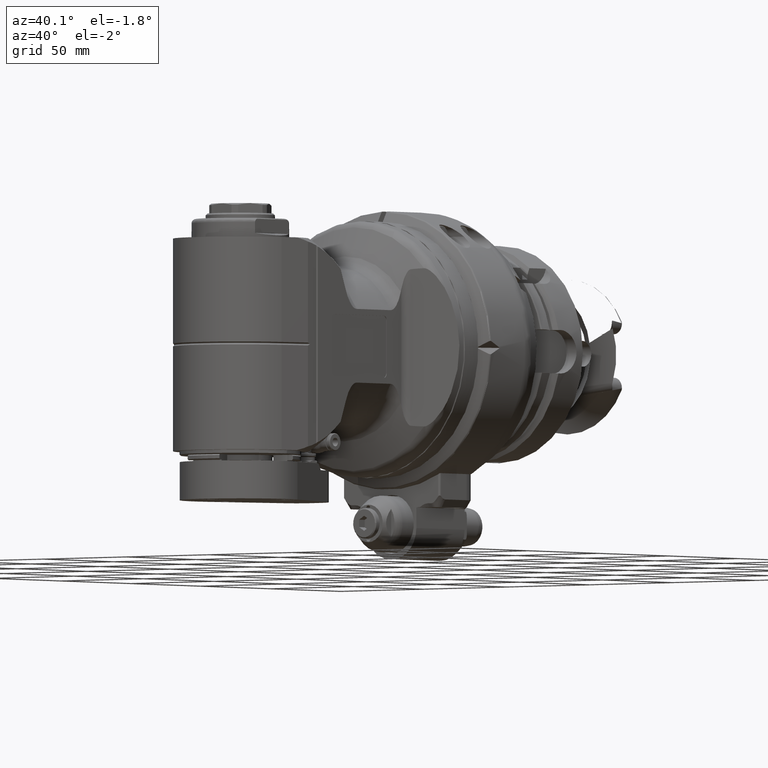
[diagram: clean part render]
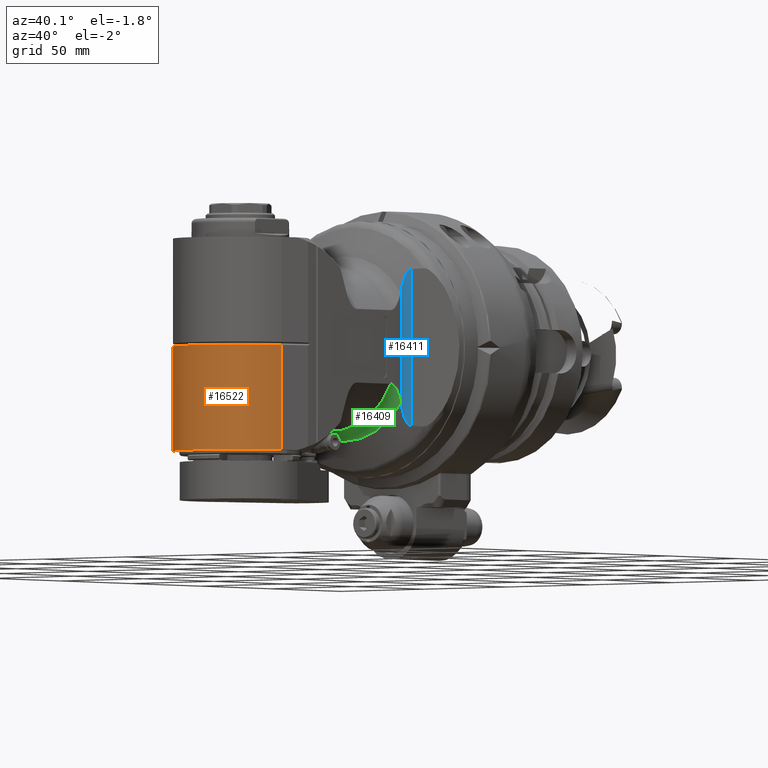
[diagram: same view with three faces highlighted in distinct colors, each labeled with its STEP entity id]
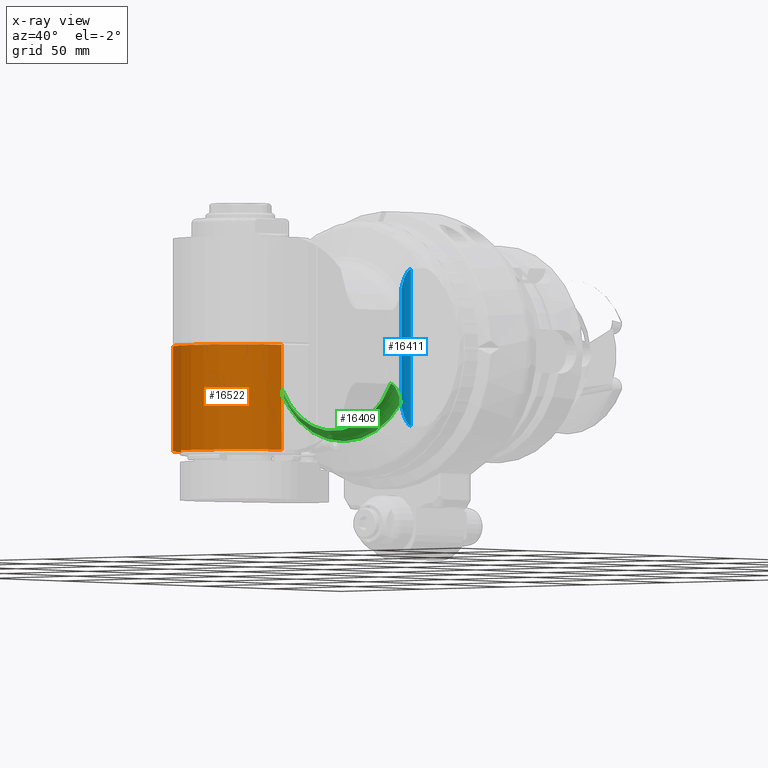
[diagram: x-ray of the same camera — body ghosted, the three highlighted faces saturated]
A machine part, auxiliary view with three faces highlighted in distinct colors.
The next image is the same camera in x-ray (body ghosted, the three faces saturated) — at least one of them is partly hidden behind the body in this view.
Their STEP definitions:

[orange] entity #16522 — the highlighted cylindrical surface (partial cylindrical patch) has radius 31 mm, axis along (-0, 0, -1).
#1303=LINE('',#31589,#2481);
#1306=LINE('',#31649,#2484);
#2481=VECTOR('',#21281,48.33431457505);
#2484=VECTOR('',#21292,48.33431457505);
#3252=CYLINDRICAL_SURFACE('',#18138,31.);
#4508=FACE_OUTER_BOUND('',#5526,.T.);
#5526=EDGE_LOOP('',(#14092,#14093,#14094,#14095));
#6313=CIRCLE('',#17843,31.);
#6327=CIRCLE('',#17880,31.);
#7513=VERTEX_POINT('',#31318);
#7514=VERTEX_POINT('',#31320);
#7563=VERTEX_POINT('',#31587);
#7564=VERTEX_POINT('',#31591);
#9651=EDGE_CURVE('',#7513,#7514,#6313,.T.);
#9719=EDGE_CURVE('',#7563,#7514,#1303,.T.);
#9730=EDGE_CURVE('',#7563,#7564,#6327,.T.);
#9736=EDGE_CURVE('',#7513,#7564,#1306,.T.);
#14092=ORIENTED_EDGE('',*,*,#9651,.F.);
#14093=ORIENTED_EDGE('',*,*,#9736,.T.);
#14094=ORIENTED_EDGE('',*,*,#9730,.F.);
#14095=ORIENTED_EDGE('',*,*,#9719,.T.);
#16522=ADVANCED_FACE('',(#4508),#3252,.T.);
#17843=AXIS2_PLACEMENT_3D('',#31321,#21189,#21190);
#17880=AXIS2_PLACEMENT_3D('',#31629,#21285,#21286);
#18138=AXIS2_PLACEMENT_3D('',#32448,#21905,#21906);
#21189=DIRECTION('center_axis',(0.,-1.,0.));
#21190=DIRECTION('ref_axis',(0.207911690817799,0.,-0.978147600733797));
#21281=DIRECTION('',(1.505339980126E-13,-1.,-4.086762836672E-14));
#21285=DIRECTION('center_axis',(0.,1.,0.));
#21286=DIRECTION('ref_axis',(0.207911690816993,0.,0.978147600733968));
#21292=DIRECTION('',(-1.481819042937E-13,1.,-4.005909615083E-14));
#21905=DIRECTION('center_axis',(0.,1.,0.));
#21906=DIRECTION('ref_axis',(1.,0.,0.));
#31318=CARTESIAN_POINT('',(284.5083594154,0.6656854249495,-30.32257562275));
#31320=CARTESIAN_POINT('',(284.5083594154,0.6656854249496,30.32257562275));
#31321=CARTESIAN_POINT('Origin',(278.063097,0.6656854249493,0.));
#31587=CARTESIAN_POINT('',(284.5083594153,49.,30.32257562275));
#31589=CARTESIAN_POINT('',(284.5083594153,49.,30.32257562275));
#31591=CARTESIAN_POINT('',(284.5083594153,49.,-30.32257562275));
#31629=CARTESIAN_POINT('Origin',(278.063097,49.,0.));
#31649=CARTESIAN_POINT('',(284.5083594154,0.6656854249495,-30.32257562275));
#32448=CARTESIAN_POINT('Origin',(278.063097,49.,0.));

[blue] entity #16411 — the highlighted cylindrical surface (edge-blend (fillet) strip) has radius 4 mm, axis along (-0, 0, -1).
#284=B_SPLINE_CURVE_WITH_KNOTS('',3,(#31884,#31885,#31886,#31887,#31888,
#31889,#31890,#31891,#31892,#31893,#31894,#31895,#31896,#31897,#31898,#31899),
 .UNSPECIFIED.,.F.,.F.,(4,2,2,2,2,2,2,4),(-8.25576336933049,-8.16395901462912,
-7.80669181368098,-7.63132471234137,-7.53509889223819,-7.34203647450375,
-7.27460050669652,-7.24161732158317),.UNSPECIFIED.);
#285=B_SPLINE_CURVE_WITH_KNOTS('',3,(#31903,#31904,#31905,#31906,#31907,
#31908,#31909,#31910,#31911,#31912,#31913,#31914,#31915,#31916),
 .UNSPECIFIED.,.F.,.F.,(4,2,2,2,2,2,4),(-3.6325553186778,-3.59269873547277,
-3.5327491167256,-3.40884183733871,-3.28493455795182,-3.03711999917804,
-2.57561095604498),.UNSPECIFIED.);
#1296=LINE('',#31489,#2474);
#1316=LINE('',#31902,#2494);
#2474=VECTOR('',#21246,53.76405745091);
#2494=VECTOR('',#21386,72.1242435735);
#3213=CYLINDRICAL_SURFACE('',#17924,4.);
#4397=FACE_OUTER_BOUND('',#5387,.T.);
#5387=EDGE_LOOP('',(#13626,#13627,#13628,#13629));
#7541=VERTEX_POINT('',#31484);
#7542=VERTEX_POINT('',#31488);
#7613=VERTEX_POINT('',#31882);
#7614=VERTEX_POINT('',#31901);
#9692=EDGE_CURVE('',#7542,#7541,#1296,.T.);
#9791=EDGE_CURVE('',#7541,#7613,#284,.T.);
#9792=EDGE_CURVE('',#7613,#7614,#1316,.T.);
#9793=EDGE_CURVE('',#7614,#7542,#285,.T.);
#13626=ORIENTED_EDGE('',*,*,#9791,.T.);
#13627=ORIENTED_EDGE('',*,*,#9792,.T.);
#13628=ORIENTED_EDGE('',*,*,#9793,.T.);
#13629=ORIENTED_EDGE('',*,*,#9692,.T.);
#16411=ADVANCED_FACE('',(#4397),#3213,.F.);
#17924=AXIS2_PLACEMENT_3D('',#31900,#21384,#21385);
#21246=DIRECTION('',(-2.598783093844E-11,1.,-4.370512454913E-13));
#21384=DIRECTION('center_axis',(0.,1.,0.));
#21385=DIRECTION('ref_axis',(0.,0.,-1.));
#21386=DIRECTION('',(0.,-1.,0.));
#31484=CARTESIAN_POINT('',(203.363925942723,26.8820294540298,34.0000000485855));
#31488=CARTESIAN_POINT('',(203.363925944085,-26.8820294493838,34.0000000485934));
#31489=CARTESIAN_POINT('',(203.3639256739,-26.88202872318,34.00000014578));
#31882=CARTESIAN_POINT('',(199.6051566057,36.06212178675,36.63191942665));
#31884=CARTESIAN_POINT('Ctrl Pts',(203.363926070757,26.8820294910585,34.0000000000001));
#31885=CARTESIAN_POINT('Ctrl Pts',(203.273794991077,27.1936758951366,34.0000000229417));
#31886=CARTESIAN_POINT('Ctrl Pts',(203.18370274717,27.4979443778987,34.0030763664445));
#31887=CARTESIAN_POINT('Ctrl Pts',(202.750476659065,28.9304906979183,34.0322539598207));
#31888=CARTESIAN_POINT('Ctrl Pts',(202.304381177674,30.2854040625854,34.1185455683438));
#31889=CARTESIAN_POINT('Ctrl Pts',(201.702254979656,31.9387735637612,34.3552474449601));
#31890=CARTESIAN_POINT('Ctrl Pts',(201.455284966969,32.584206915034,34.4755783454566));
#31891=CARTESIAN_POINT('Ctrl Pts',(201.122077062777,33.3996647561447,34.6843526827933));
#31892=CARTESIAN_POINT('Ctrl Pts',(200.977156019247,33.741398110545,34.7861698763569));
#31893=CARTESIAN_POINT('Ctrl Pts',(200.604316708804,34.578341200684,35.0868029985124));
#31894=CARTESIAN_POINT('Ctrl Pts',(200.294203214008,35.2181684523155,35.3881670021329));
#31895=CARTESIAN_POINT('Ctrl Pts',(199.927231964395,35.7733005341851,35.9459787136659));
#31896=CARTESIAN_POINT('Ctrl Pts',(199.823736294382,35.9081806927129,36.1249607521001));
#31897=CARTESIAN_POINT('Ctrl Pts',(199.686128565685,36.0261701037431,36.4234675959798));
#31898=CARTESIAN_POINT('Ctrl Pts',(199.643418256449,36.0519458861388,36.5267964053907));
#31899=CARTESIAN_POINT('Ctrl Pts',(199.605156605762,36.0621217866407,36.631919426683));
#31900=CARTESIAN_POINT('Origin',(203.3639270889,-70.8000024,38.));
#31901=CARTESIAN_POINT('',(199.6051566057,-36.06212178675,36.63191942665));
#31902=CARTESIAN_POINT('',(199.6051566057,36.06212178675,36.63191942665));
#31903=CARTESIAN_POINT('Ctrl Pts',(199.605156605762,-36.0621217866407,36.631919426683));
#31904=CARTESIAN_POINT('Ctrl Pts',(199.651407867783,-36.0498210042133,36.5048451286592));
#31905=CARTESIAN_POINT('Ctrl Pts',(199.704582061881,-36.0143412683041,36.3795023364971));
#31906=CARTESIAN_POINT('Ctrl Pts',(199.845630179349,-35.8797486176875,36.0869823809199));
#31907=CARTESIAN_POINT('Ctrl Pts',(199.937778190483,-35.7573468363122,35.9299480070892));
#31908=CARTESIAN_POINT('Ctrl Pts',(200.196782466145,-35.3655407127732,35.5362506303778));
#31909=CARTESIAN_POINT('Ctrl Pts',(200.358965348041,-35.0594759277667,35.3502446751655));
#31910=CARTESIAN_POINT('Ctrl Pts',(200.676287123457,-34.4163762830006,35.0288758728248));
#31911=CARTESIAN_POINT('Ctrl Pts',(200.830696252249,-34.0764873927272,34.8985300588565));
#31912=CARTESIAN_POINT('Ctrl Pts',(201.290015176756,-33.0120824548597,34.5585080418454));
#31913=CARTESIAN_POINT('Ctrl Pts',(201.588638417706,-32.2481099704604,34.4017907840756));
#31914=CARTESIAN_POINT('Ctrl Pts',(202.424004697445,-29.96160051885,34.0681982532547));
#31915=CARTESIAN_POINT('Ctrl Pts',(202.931790899576,-28.376224087234,34.0000001098486));
#31916=CARTESIAN_POINT('Ctrl Pts',(203.363926072102,-26.8820294864077,34.0000000000001));

[green] entity #16409 — the highlighted toroidal blend (fillet) surface has major radius 46 mm and minor (blend) radius 8 mm.
#271=B_SPLINE_CURVE_WITH_KNOTS('',3,(#31468,#31469,#31470,#31471,#31472,
#31473,#31474,#31475,#31476,#31477,#31478,#31479,#31480,#31481,#31482,#31483),
 .UNSPECIFIED.,.F.,.F.,(4,2,2,2,2,2,2,4),(-4.18910937132057,-4.17135447383444,
-3.91846915486092,-3.66558383588739,-3.4787538185637,-3.29192380124001,
-3.16453283287773,-3.05573251034379),.UNSPECIFIED.);
#280=B_SPLINE_CURVE_WITH_KNOTS('',3,(#31752,#31753,#31754,#31755,#31756,
#31757,#31758,#31759,#31760,#31761,#31762,#31763,#31764,#31765,#31766,#31767),
 .UNSPECIFIED.,.F.,.F.,(4,2,2,2,2,2,2,4),(-3.05573251034379,-2.94693218780986,
-2.81954121944757,-2.63271120212388,-2.4458811848002,-2.19299586582667,
-1.94011054685314,-1.92235564936744),.UNSPECIFIED.);
#4395=FACE_OUTER_BOUND('',#5385,.T.);
#5385=EDGE_LOOP('',(#13614,#13615,#13616,#13617));
#6347=CIRCLE('',#17917,38.);
#6348=CIRCLE('',#17919,42.61905390607);
#7539=VERTEX_POINT('',#31465);
#7540=VERTEX_POINT('',#31467);
#7592=VERTEX_POINT('',#31747);
#7593=VERTEX_POINT('',#31751);
#9690=EDGE_CURVE('',#7540,#7539,#271,.T.);
#9756=EDGE_CURVE('',#7593,#7592,#280,.T.);
#9785=EDGE_CURVE('',#7539,#7593,#6347,.T.);
#9786=EDGE_CURVE('',#7592,#7540,#6348,.T.);
#13614=ORIENTED_EDGE('',*,*,#9786,.T.);
#13615=ORIENTED_EDGE('',*,*,#9690,.T.);
#13616=ORIENTED_EDGE('',*,*,#9785,.T.);
#13617=ORIENTED_EDGE('',*,*,#9756,.T.);
#15849=TOROIDAL_SURFACE('',#17918,46.,8.);
#16409=ADVANCED_FACE('',(#4395),#15849,.F.);
#17917=AXIS2_PLACEMENT_3D('',#31856,#21370,#21371);
#17918=AXIS2_PLACEMENT_3D('',#31857,#21372,#21373);
#17919=AXIS2_PLACEMENT_3D('',#31858,#21374,#21375);
#21370=DIRECTION('center_axis',(-1.,0.,0.));
#21371=DIRECTION('ref_axis',(0.,1.,0.));
#21372=DIRECTION('center_axis',(-1.,0.,0.));
#21373=DIRECTION('ref_axis',(0.,0.,1.));
#21374=DIRECTION('center_axis',(1.,0.,0.));
#21375=DIRECTION('ref_axis',(0.,0.602968185274902,-0.797765233352702));
#31465=CARTESIAN_POINT('',(210.9521198437,16.97056274848,34.));
#31467=CARTESIAN_POINT('',(203.701657532569,25.6979329826565,33.9999999850205));
#31468=CARTESIAN_POINT('Ctrl Pts',(203.701657527398,25.6979329812025,34.));
#31469=CARTESIAN_POINT('Ctrl Pts',(203.717880341757,25.6402351790415,34.));
#31470=CARTESIAN_POINT('Ctrl Pts',(203.734255443667,25.5829565211873,34.));
#31471=CARTESIAN_POINT('Ctrl Pts',(203.985917934121,24.7166356546219,34.));
#31472=CARTESIAN_POINT('Ctrl Pts',(204.295790524545,23.8439416682403,34.));
#31473=CARTESIAN_POINT('Ctrl Pts',(205.041213079382,22.1555959983674,34.));
#31474=CARTESIAN_POINT('Ctrl Pts',(205.477048966678,21.3400705673323,34.));
#31475=CARTESIAN_POINT('Ctrl Pts',(206.270623996535,20.1077689382488,34.));
#31476=CARTESIAN_POINT('Ctrl Pts',(206.674401664489,19.555304351645,34.));
#31477=CARTESIAN_POINT('Ctrl Pts',(207.580207465488,18.5465996865153,34.));
#31478=CARTESIAN_POINT('Ctrl Pts',(208.083318701176,18.0913327478181,34.));
#31479=CARTESIAN_POINT('Ctrl Pts',(208.95582872201,17.5118675579488,34.));
#31480=CARTESIAN_POINT('Ctrl Pts',(209.410012247592,17.2808423077824,34.));
#31481=CARTESIAN_POINT('Ctrl Pts',(210.160088938658,17.041608064786,34.));
#31482=CARTESIAN_POINT('Ctrl Pts',(210.58945210192,16.9705627484771,34.));
#31483=CARTESIAN_POINT('Ctrl Pts',(210.9521198437,16.9705627484771,34.));
#31747=CARTESIAN_POINT('',(203.70165753257,25.6979329826522,-33.9999999850213));
#31751=CARTESIAN_POINT('',(210.9521198437,16.97056274848,-34.));
#31752=CARTESIAN_POINT('Ctrl Pts',(210.9521198437,16.9705627484771,-34.));
#31753=CARTESIAN_POINT('Ctrl Pts',(210.58945210192,16.9705627484771,-34.));
#31754=CARTESIAN_POINT('Ctrl Pts',(210.160088938658,17.041608064786,-34.));
#31755=CARTESIAN_POINT('Ctrl Pts',(209.410012247592,17.2808423077824,-34.));
#31756=CARTESIAN_POINT('Ctrl Pts',(208.95582872201,17.5118675579488,-34.));
#31757=CARTESIAN_POINT('Ctrl Pts',(208.083318701176,18.0913327478181,-34.));
#31758=CARTESIAN_POINT('Ctrl Pts',(207.580207465488,18.5465996865153,-34.));
#31759=CARTESIAN_POINT('Ctrl Pts',(206.674401664489,19.555304351645,-34.));
#31760=CARTESIAN_POINT('Ctrl Pts',(206.270623996535,20.1077689382488,-34.));
#31761=CARTESIAN_POINT('Ctrl Pts',(205.477048966678,21.3400705673323,-34.));
#31762=CARTESIAN_POINT('Ctrl Pts',(205.041213079382,22.1555959983674,-34.));
#31763=CARTESIAN_POINT('Ctrl Pts',(204.295790524545,23.8439416682403,-34.));
#31764=CARTESIAN_POINT('Ctrl Pts',(203.985917934121,24.7166356546219,-34.));
#31765=CARTESIAN_POINT('Ctrl Pts',(203.734255443668,25.5829565211859,-34.));
#31766=CARTESIAN_POINT('Ctrl Pts',(203.717880341758,25.6402351790388,-34.));
#31767=CARTESIAN_POINT('Ctrl Pts',(203.701657527399,25.6979329811983,-34.));
#31856=CARTESIAN_POINT('Origin',(210.9521198437,0.,0.));
#31857=CARTESIAN_POINT('Origin',(210.9521198437,0.,0.));
#31858=CARTESIAN_POINT('Origin',(203.7016575474,0.,0.));